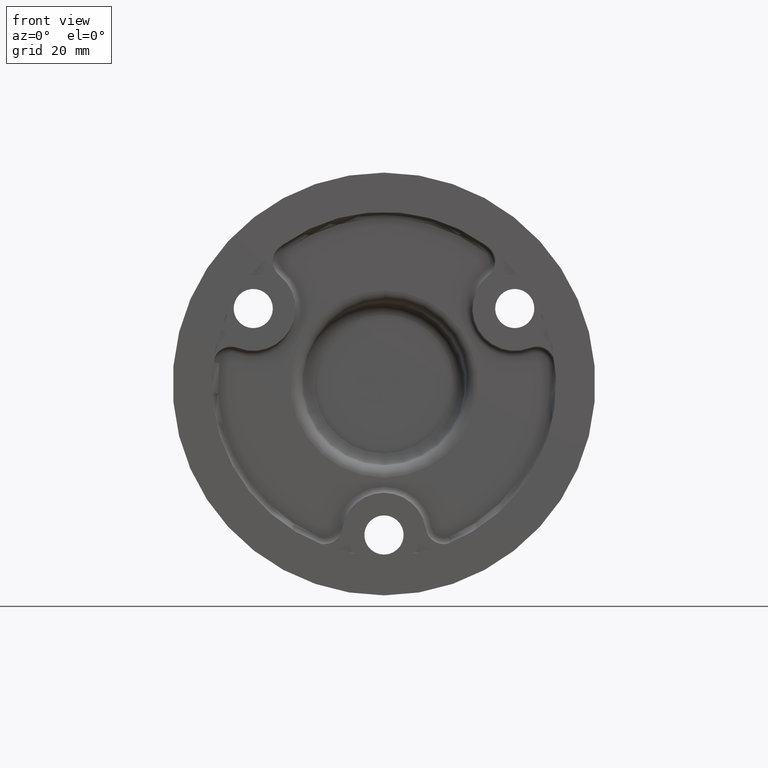
[diagram: clean part render]
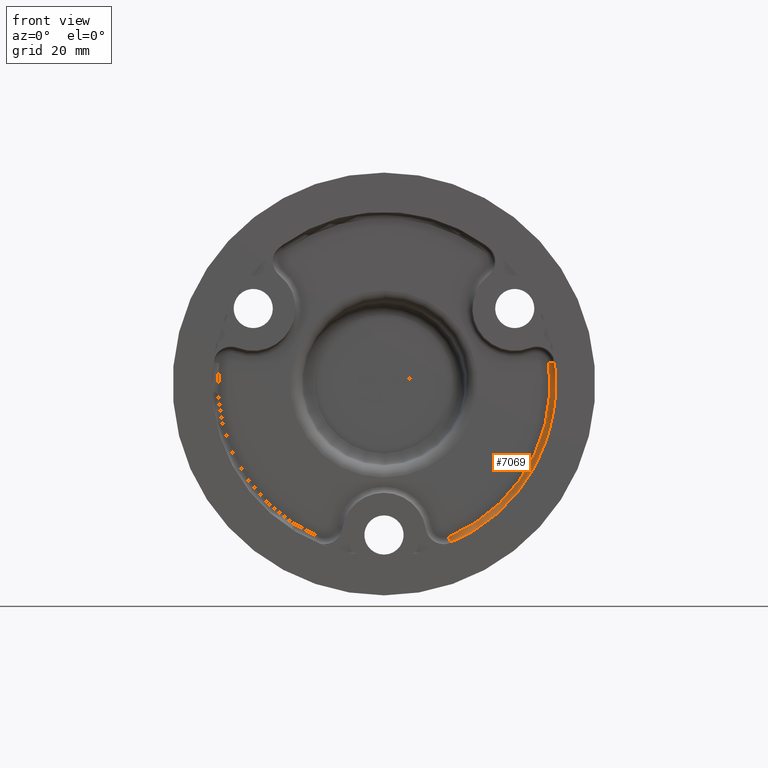
[diagram: same view with one face highlighted and labeled with its STEP entity id]
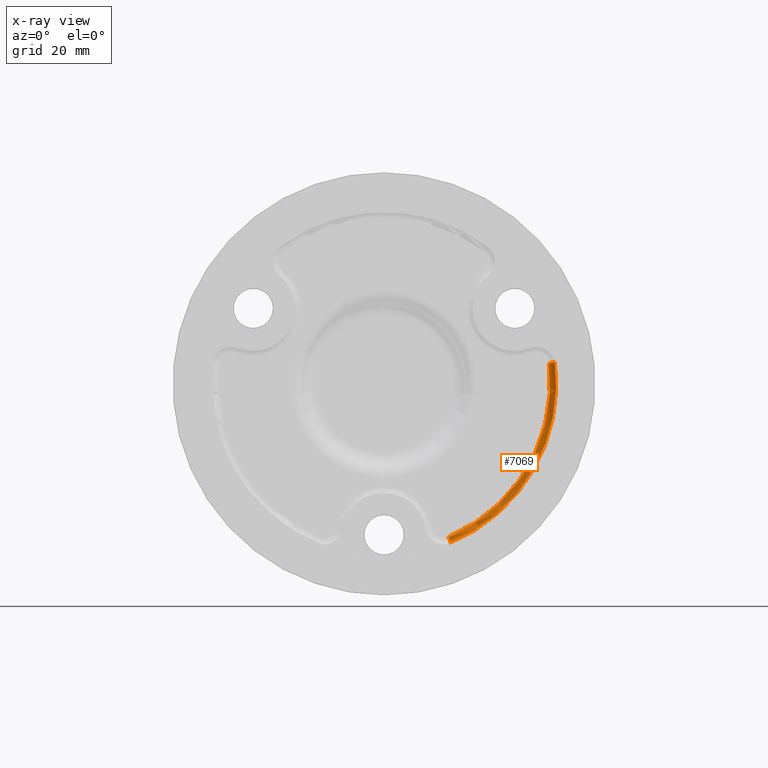
[diagram: x-ray of the same camera — body ghosted, the highlighted face saturated]
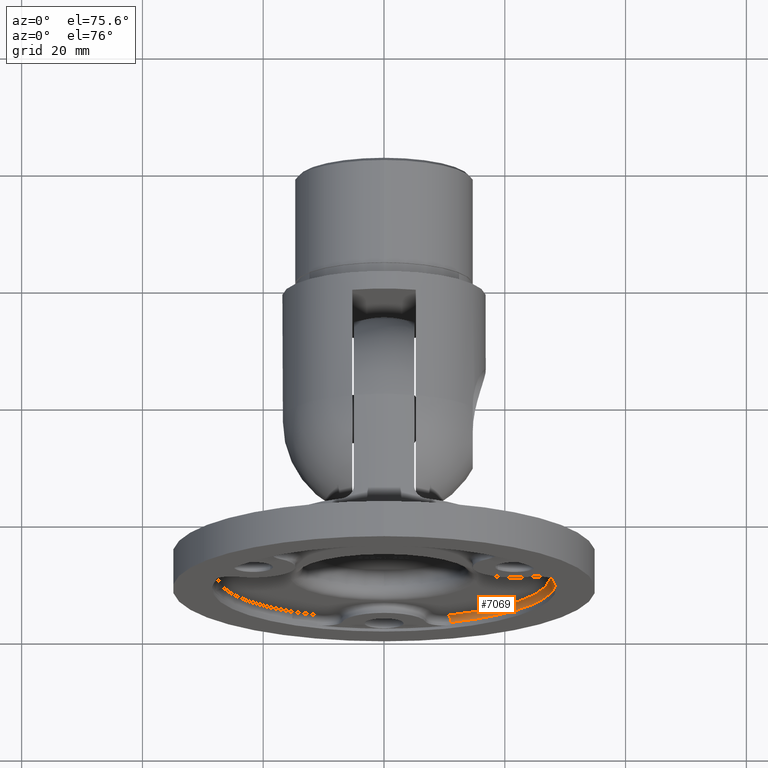
[diagram: same view with one face highlighted and labeled with its STEP entity id]
A machine part, front view. The second image highlights one B-rep face of the part: STEP entity #7069.
The next image is the same camera in x-ray: the body ghosted, the highlighted face saturated — about 0% of this face is hidden behind the body in this view.
A second angle (auxiliary view) of the same face is appended — the face is thin or edge-on in the first view.
In plain terms, the highlighted toroidal blend (fillet) surface has major radius 27.5 mm and minor (blend) radius 1 mm.
Its self-contained STEP definition (entity closure, byte-faithful):
#51 = CARTESIAN_POINT ( 'NONE',  ( 0.000000000000000000, 2.000000000000000000, 0.000000000000000000 ) ) ;
#102 = ORIENTED_EDGE ( 'NONE', *, *, #2027, .F. ) ;
#762 = CIRCLE ( 'NONE', #14082, 27.50000000000001066 ) ;
#1148 = CARTESIAN_POINT ( 'NONE',  ( 10.66311664856478991, 1.000000000000000000, -25.34852941176471930 ) ) ;
#1634 = DIRECTION ( 'NONE',  ( -0.1250812656257671018, -3.687859585594526653E-18, 0.9921464997617319703 ) ) ;
#1937 = CARTESIAN_POINT ( 'NONE',  ( 10.66311664856478991, 2.000000000000000000, -25.34852941176471930 ) ) ;
#1939 = VERTEX_POINT ( 'NONE', #9064 ) ;
#2027 = EDGE_CURVE ( 'NONE', #1939, #5013, #5536, .T. ) ;
#2365 = DIRECTION ( 'NONE',  ( 0.9217647058823531525, -0.000000000000000000, 0.3877496963114468453 ) ) ;
#2765 = AXIS2_PLACEMENT_3D ( 'NONE', #11437, #1634, #13817 ) ;
#2818 = EDGE_CURVE ( 'NONE', #6743, #11956, #762, .T. ) ;
#2981 = FACE_OUTER_BOUND ( 'NONE', #12142, .T. ) ;
#3483 = ORIENTED_EDGE ( 'NONE', *, *, #2818, .F. ) ;
#3498 = DIRECTION ( 'NONE',  ( 0.3877496963114467898, 0.000000000000000000, -0.9217647058823529305 ) ) ;
#4115 = CIRCLE ( 'NONE', #13524, 1.000000000000001776 ) ;
#4702 = CARTESIAN_POINT ( 'NONE',  ( 27.28402874344763873, 2.000000000000000000, 3.439734804708590055 ) ) ;
#5013 = VERTEX_POINT ( 'NONE', #10125 ) ;
#5536 = CIRCLE ( 'NONE', #15729, 28.50000000000001066 ) ;
#6488 = EDGE_CURVE ( 'NONE', #1939, #11956, #7382, .T. ) ;
#6743 = VERTEX_POINT ( 'NONE', #1937 ) ;
#6884 = CARTESIAN_POINT ( 'NONE',  ( 0.000000000000000000, 1.000000000000000000, 0.000000000000000000 ) ) ;
#6982 = DIRECTION ( 'NONE',  ( 0.000000000000000000, 0.000000000000000000, 1.000000000000000000 ) ) ;
#7069 = ADVANCED_FACE ( 'NONE', ( #2981 ), #12731, .F. ) ;
#7382 = CIRCLE ( 'NONE', #2765, 0.9999999999999993339 ) ;
#7710 = EDGE_CURVE ( 'NONE', #5013, #6743, #4115, .T. ) ;
#8338 = AXIS2_PLACEMENT_3D ( 'NONE', #9987, #11260, #13627 ) ;
#9064 = CARTESIAN_POINT ( 'NONE',  ( 28.27617524320937292, 1.000000000000000000, 3.564816070334357434 ) ) ;
#9987 = CARTESIAN_POINT ( 'NONE',  ( 0.000000000000000000, 1.000000000000000000, 0.000000000000000000 ) ) ;
#10125 = CARTESIAN_POINT ( 'NONE',  ( 11.05086634487623876, 1.000000000000000000, -26.27029411764707234 ) ) ;
#11260 = DIRECTION ( 'NONE',  ( -0.000000000000000000, 1.000000000000000000, -0.000000000000000000 ) ) ;
#11437 = CARTESIAN_POINT ( 'NONE',  ( 27.28402874344764584, 1.000000000000000000, 3.439734804708590943 ) ) ;
#11956 = VERTEX_POINT ( 'NONE', #4702 ) ;
#12142 = EDGE_LOOP ( 'NONE', ( #12221, #3483, #14331, #102 ) ) ;
#12221 = ORIENTED_EDGE ( 'NONE', *, *, #6488, .T. ) ;
#12731 = TOROIDAL_SURFACE ( 'NONE', #8338, 27.50000000000001066, 1.000000000000000000 ) ;
#13524 = AXIS2_PLACEMENT_3D ( 'NONE', #1148, #2365, #3498 ) ;
#13627 = DIRECTION ( 'NONE',  ( 0.000000000000000000, 0.000000000000000000, 1.000000000000000000 ) ) ;
#13817 = DIRECTION ( 'NONE',  ( 0.9921464997617319703, 0.000000000000000000, 0.1250812656257671018 ) ) ;
#14082 = AXIS2_PLACEMENT_3D ( 'NONE', #51, #15707, #14528 ) ;
#14331 = ORIENTED_EDGE ( 'NONE', *, *, #7710, .F. ) ;
#14413 = DIRECTION ( 'NONE',  ( -0.000000000000000000, 1.000000000000000000, -0.000000000000000000 ) ) ;
#14528 = DIRECTION ( 'NONE',  ( 0.000000000000000000, 0.000000000000000000, 1.000000000000000000 ) ) ;
#15707 = DIRECTION ( 'NONE',  ( 0.000000000000000000, -1.000000000000000000, 0.000000000000000000 ) ) ;
#15729 = AXIS2_PLACEMENT_3D ( 'NONE', #6884, #14413, #6982 ) ;